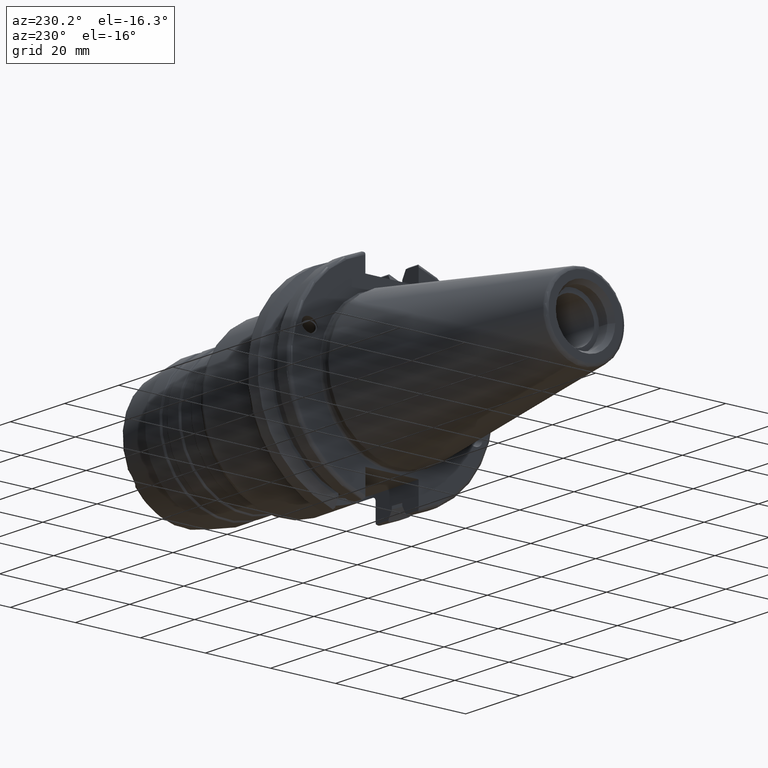
[diagram: clean part render]
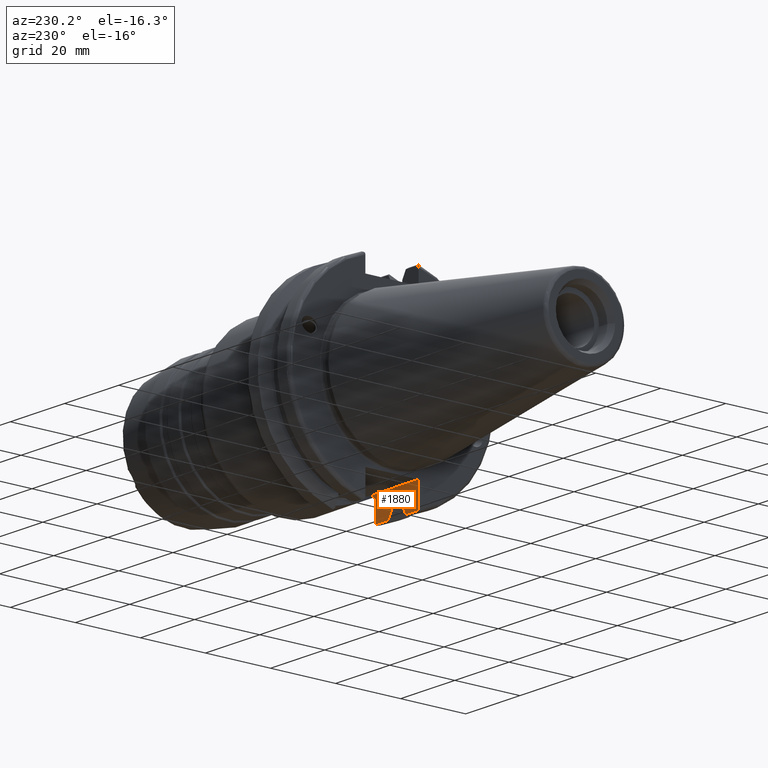
[diagram: same view with one face highlighted and labeled with its STEP entity id]
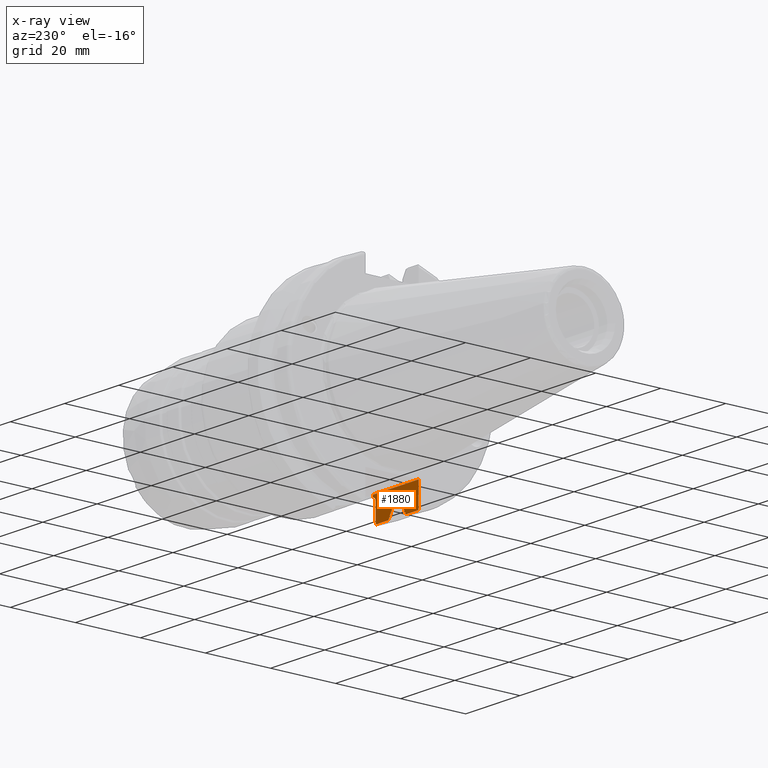
[diagram: x-ray of the same camera — body ghosted, the highlighted face saturated]
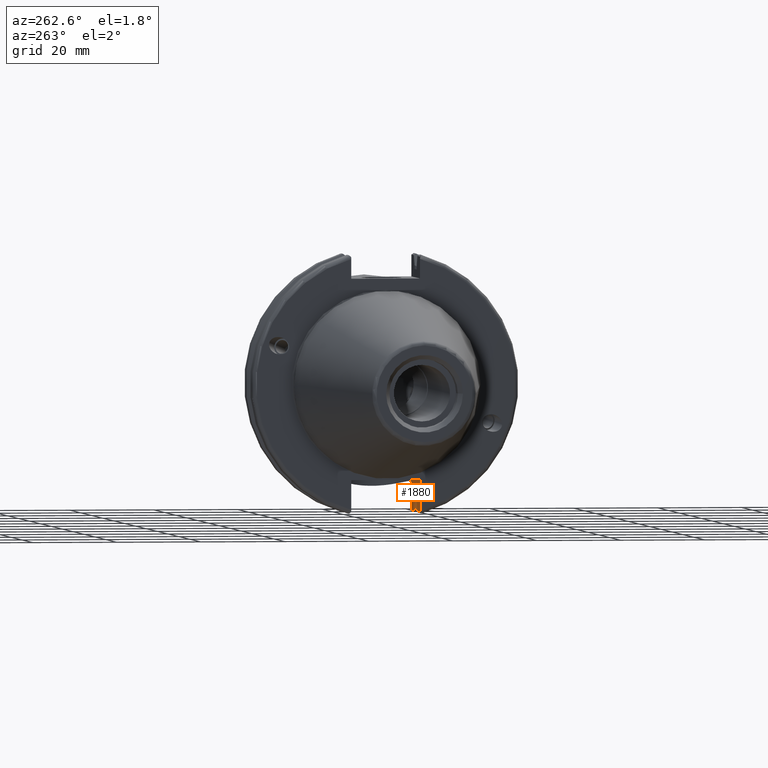
[diagram: same view with one face highlighted and labeled with its STEP entity id]
A machine part, auxiliary view. The second image highlights one B-rep face of the part: STEP entity #1880.
The next image is the same camera in x-ray: the body ghosted, the highlighted face saturated — about 0% of this face is hidden behind the body in this view.
A second angle (auxiliary view) of the same face is appended — the face is thin or edge-on in the first view.
In plain terms, the highlighted planar face has unit normal (0, -1, 0).
Its self-contained STEP definition (entity closure, byte-faithful):
#15=(
BOUNDED_CURVE()
B_SPLINE_CURVE(2,(#3240,#3241,#3242),.UNSPECIFIED.,.F.,.F.)
B_SPLINE_CURVE_WITH_KNOTS((3,3),(0.,0.276549142795512),.UNSPECIFIED.)
CURVE()
GEOMETRIC_REPRESENTATION_ITEM()
RATIONAL_B_SPLINE_CURVE((1.,1.00095203904184,1.00031614445102))
REPRESENTATION_ITEM('')
);
#26=(
BOUNDED_CURVE()
B_SPLINE_CURVE(2,(#3575,#3576,#3577),.UNSPECIFIED.,.F.,.F.)
B_SPLINE_CURVE_WITH_KNOTS((3,3),(0.0550586467392022,0.33160778953585),
 .UNSPECIFIED.)
CURVE()
GEOMETRIC_REPRESENTATION_ITEM()
RATIONAL_B_SPLINE_CURVE((1.00031614445148,1.00095203904325,1.))
REPRESENTATION_ITEM('')
);
#66=PLANE('',#2135);
#122=B_SPLINE_CURVE_WITH_KNOTS('',3,(#3023,#3024,#3025,#3026,#3027,#3028,
#3029,#3030,#3031,#3032),.UNSPECIFIED.,.F.,.F.,(4,2,2,2,4),(0.152036209068872,
0.19179652975479,0.230554749961229,0.268011696377573,0.304368806480559),
 .UNSPECIFIED.);
#140=B_SPLINE_CURVE_WITH_KNOTS('',3,(#3519,#3520,#3521,#3522,#3523,#3524),
 .UNSPECIFIED.,.F.,.F.,(4,2,4),(0.097738363091569,0.112311108149119,0.150804350305566),
 .UNSPECIFIED.);
#145=B_SPLINE_CURVE_WITH_KNOTS('',3,(#3580,#3581,#3582,#3583,#3584,#3585),
 .UNSPECIFIED.,.F.,.F.,(4,2,4),(0.452741154494498,0.491581665024872,0.505824174364157),
 .UNSPECIFIED.);
#241=FACE_OUTER_BOUND('',#359,.T.);
#359=EDGE_LOOP('',(#1604,#1605,#1606,#1607,#1608,#1609,#1610,#1611,#1612,
#1613,#1614,#1615,#1616,#1617));
#411=LINE('',#3056,#505);
#414=LINE('',#3097,#508);
#432=LINE('',#3261,#526);
#433=LINE('',#3265,#527);
#434=LINE('',#3269,#528);
#456=LINE('',#3451,#550);
#471=LINE('',#3573,#565);
#472=LINE('',#3579,#566);
#473=LINE('',#3586,#567);
#505=VECTOR('',#2382,10.);
#508=VECTOR('',#2411,10.);
#526=VECTOR('',#2507,10.);
#527=VECTOR('',#2512,10.);
#528=VECTOR('',#2517,10.);
#550=VECTOR('',#2629,10.);
#565=VECTOR('',#2664,10.);
#566=VECTOR('',#2665,10.);
#567=VECTOR('',#2666,10.);
#765=VERTEX_POINT('',#3020);
#766=VERTEX_POINT('',#3022);
#772=VERTEX_POINT('',#3054);
#779=VERTEX_POINT('',#3096);
#809=VERTEX_POINT('',#3237);
#810=VERTEX_POINT('',#3239);
#815=VERTEX_POINT('',#3259);
#816=VERTEX_POINT('',#3263);
#817=VERTEX_POINT('',#3267);
#855=VERTEX_POINT('',#3437);
#861=VERTEX_POINT('',#3449);
#873=VERTEX_POINT('',#3518);
#882=VERTEX_POINT('',#3574);
#883=VERTEX_POINT('',#3578);
#979=EDGE_CURVE('',#765,#766,#122,.T.);
#987=EDGE_CURVE('',#772,#765,#411,.T.);
#999=EDGE_CURVE('',#779,#766,#414,.T.);
#1042=EDGE_CURVE('',#809,#810,#15,.T.);
#1049=EDGE_CURVE('',#815,#809,#432,.T.);
#1051=EDGE_CURVE('',#816,#815,#433,.T.);
#1053=EDGE_CURVE('',#817,#816,#434,.T.);
#1112=EDGE_CURVE('',#861,#855,#456,.T.);
#1130=EDGE_CURVE('',#873,#772,#140,.T.);
#1143=EDGE_CURVE('',#810,#873,#471,.T.);
#1144=EDGE_CURVE('',#882,#817,#26,.T.);
#1145=EDGE_CURVE('',#883,#882,#472,.T.);
#1146=EDGE_CURVE('',#855,#883,#145,.T.);
#1147=EDGE_CURVE('',#779,#861,#473,.T.);
#1604=ORIENTED_EDGE('',*,*,#1130,.F.);
#1605=ORIENTED_EDGE('',*,*,#1143,.F.);
#1606=ORIENTED_EDGE('',*,*,#1042,.F.);
#1607=ORIENTED_EDGE('',*,*,#1049,.F.);
#1608=ORIENTED_EDGE('',*,*,#1051,.F.);
#1609=ORIENTED_EDGE('',*,*,#1053,.F.);
#1610=ORIENTED_EDGE('',*,*,#1144,.F.);
#1611=ORIENTED_EDGE('',*,*,#1145,.F.);
#1612=ORIENTED_EDGE('',*,*,#1146,.F.);
#1613=ORIENTED_EDGE('',*,*,#1112,.F.);
#1614=ORIENTED_EDGE('',*,*,#1147,.F.);
#1615=ORIENTED_EDGE('',*,*,#999,.T.);
#1616=ORIENTED_EDGE('',*,*,#979,.F.);
#1617=ORIENTED_EDGE('',*,*,#987,.F.);
#1880=ADVANCED_FACE('',(#241),#66,.F.);
#2135=AXIS2_PLACEMENT_3D('',#3572,#2662,#2663);
#2382=DIRECTION('',(0.,0.,1.));
#2411=DIRECTION('',(0.,0.,-1.));
#2507=DIRECTION('',(0.,0.,-1.));
#2512=DIRECTION('',(1.,0.,0.));
#2517=DIRECTION('',(0.,0.,1.));
#2629=DIRECTION('',(0.,0.,-1.));
#2662=DIRECTION('center_axis',(0.,-1.,0.));
#2663=DIRECTION('ref_axis',(-1.,0.,0.));
#2664=DIRECTION('',(1.,0.,0.));
#2665=DIRECTION('',(1.,0.,0.));
#2666=DIRECTION('',(-1.,1.31581988103722E-16,0.));
#3020=CARTESIAN_POINT('',(19.05,-8.19,-24.4128326910254));
#3022=CARTESIAN_POINT('',(20.05,-8.19,-23.3556502799644));
#3023=CARTESIAN_POINT('Ctrl Pts',(19.05,-8.19,-24.4128326910254));
#3024=CARTESIAN_POINT('Ctrl Pts',(19.05,-8.19,-24.280298288739));
#3025=CARTESIAN_POINT('Ctrl Pts',(19.079885359023,-8.19,-24.124090110551));
#3026=CARTESIAN_POINT('Ctrl Pts',(19.177275426903,-8.19,-23.8811560320461));
#3027=CARTESIAN_POINT('Ctrl Pts',(19.2609009617474,-8.19,-23.7506111583087));
#3028=CARTESIAN_POINT('Ctrl Pts',(19.4373931081247,-8.19,-23.5678758115065));
#3029=CARTESIAN_POINT('Ctrl Pts',(19.5602603745075,-8.19,-23.4821320058467));
#3030=CARTESIAN_POINT('Ctrl Pts',(19.7864204604307,-8.19,-23.3852265342659));
#3031=CARTESIAN_POINT('Ctrl Pts',(19.92880963299,-8.19,-23.3556502799644));
#3032=CARTESIAN_POINT('Ctrl Pts',(20.05,-8.19,-23.3556502799644));
#3054=CARTESIAN_POINT('',(19.05,-8.19,-29.6392712461019));
#3056=CARTESIAN_POINT('',(19.05,-8.19,-11.3));
#3096=CARTESIAN_POINT('',(20.05,-8.19,-22.6));
#3097=CARTESIAN_POINT('',(20.05,-8.19,-22.6));
#3237=CARTESIAN_POINT('',(13.0491,-8.19,-27.7771386827498));
#3239=CARTESIAN_POINT('',(14.3815146964874,-8.19,-30.1755016258903));
#3240=CARTESIAN_POINT('Ctrl Pts',(13.0491,-8.19,-27.7771386827498));
#3241=CARTESIAN_POINT('Ctrl Pts',(13.68773643849,-8.19,-28.9303689539956));
#3242=CARTESIAN_POINT('Ctrl Pts',(14.3815146964874,-8.19,-30.1755016258903));
#3259=CARTESIAN_POINT('',(13.0491,-8.19,-26.932255754021));
#3261=CARTESIAN_POINT('',(13.0491,-8.19,-11.3));
#3263=CARTESIAN_POINT('',(9.2191,-8.19,-26.932255754021));
#3265=CARTESIAN_POINT('',(11.1341,-8.19,-26.932255754021));
#3267=CARTESIAN_POINT('',(9.2191,-8.19,-27.7771386827498));
#3269=CARTESIAN_POINT('',(9.2191,-8.19,-11.3));
#3437=CARTESIAN_POINT('',(3.175,-8.19,-29.6392712461019));
#3449=CARTESIAN_POINT('',(3.175,-8.19,-22.6));
#3451=CARTESIAN_POINT('',(3.175,-8.19,-11.3));
#3518=CARTESIAN_POINT('',(18.9058722749097,-8.19,-30.1755016258903));
#3519=CARTESIAN_POINT('Ctrl Pts',(18.9058722749097,-8.19,-30.1755016258903));
#3520=CARTESIAN_POINT('Ctrl Pts',(18.9324477233044,-8.19,-30.1299319366157));
#3521=CARTESIAN_POINT('Ctrl Pts',(18.9550700364447,-8.19,-30.0829389905409));
#3522=CARTESIAN_POINT('Ctrl Pts',(19.0210043632013,-8.19,-29.9188002007263));
#3523=CARTESIAN_POINT('Ctrl Pts',(19.05,-8.19,-29.76758205329));
#3524=CARTESIAN_POINT('Ctrl Pts',(19.05,-8.19,-29.6392712461019));
#3572=CARTESIAN_POINT('Origin',(20.05,-8.19,-22.6));
#3573=CARTESIAN_POINT('',(16.8551333845378,-8.19,-30.1755016258903));
#3574=CARTESIAN_POINT('',(7.88668530351256,-8.19,-30.1755016258903));
#3575=CARTESIAN_POINT('Ctrl Pts',(7.88668530351256,-8.19,-30.1755016258903));
#3576=CARTESIAN_POINT('Ctrl Pts',(8.5804635615235,-8.19,-28.9303689539712));
#3577=CARTESIAN_POINT('Ctrl Pts',(9.2191,-8.19,-27.7771386827498));
#3578=CARTESIAN_POINT('',(3.31912772509028,-8.19,-30.1755016258903));
#3579=CARTESIAN_POINT('',(5.39146661546218,-8.19,-30.1755016258903));
#3580=CARTESIAN_POINT('Ctrl Pts',(3.175,-8.19,-29.6392712461018));
#3581=CARTESIAN_POINT('Ctrl Pts',(3.175,-8.19,-29.7687396145364));
#3582=CARTESIAN_POINT('Ctrl Pts',(3.20451443291695,-8.19,-29.9212724384851));
#3583=CARTESIAN_POINT('Ctrl Pts',(3.27103565282437,-8.19,-30.0852355256475));
#3584=CARTESIAN_POINT('Ctrl Pts',(3.29318362718666,-8.19,-30.131014531546));
#3585=CARTESIAN_POINT('Ctrl Pts',(3.31912772509028,-8.19,-30.1755016258903));
#3586=CARTESIAN_POINT('',(20.05,-8.19,-22.6));